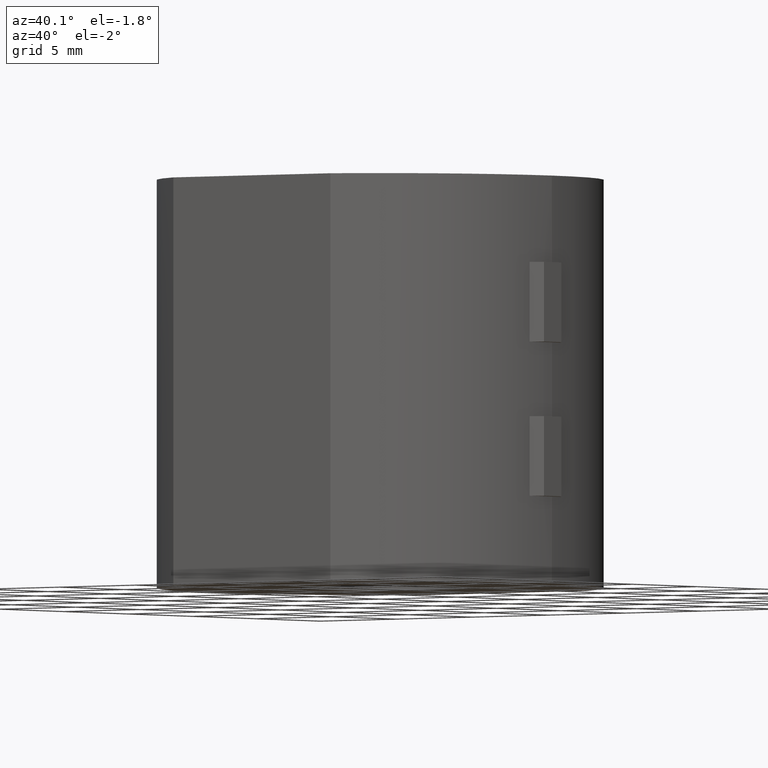
[diagram: clean part render]
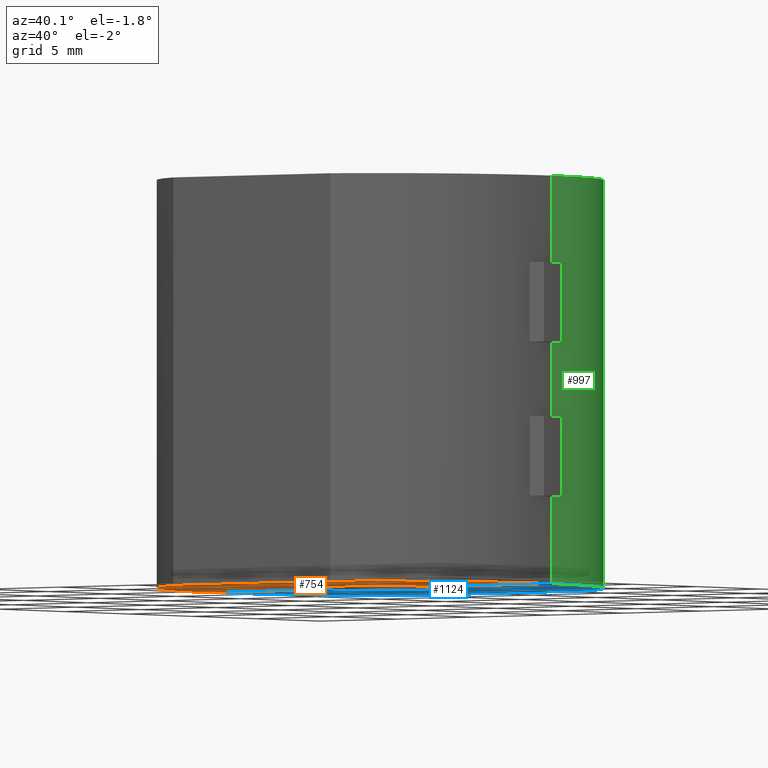
[diagram: same view with three faces highlighted in distinct colors, each labeled with its STEP entity id]
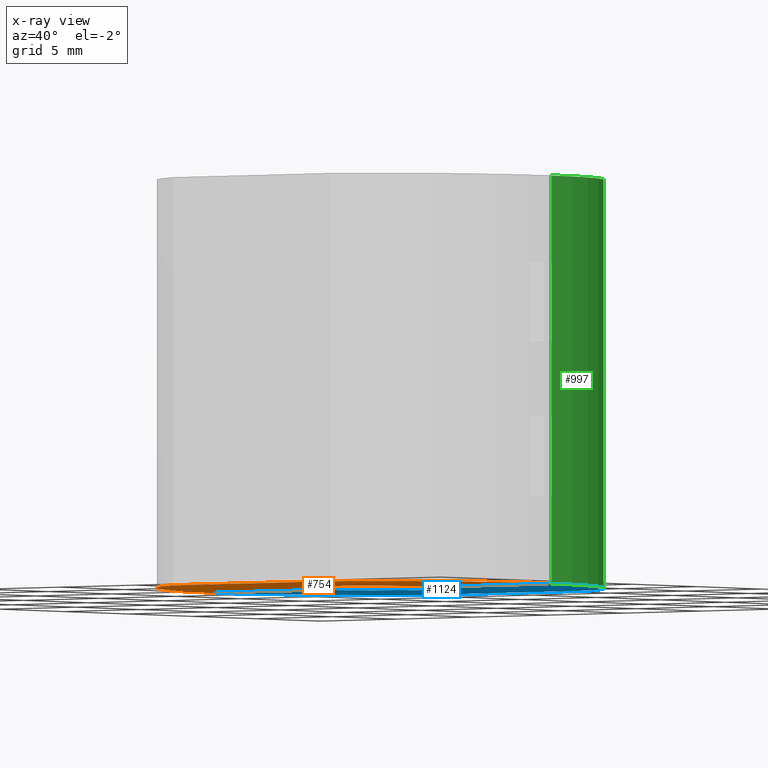
[diagram: x-ray of the same camera — body ghosted, the three highlighted faces saturated]
A machine part, auxiliary view with three faces highlighted in distinct colors.
The next image is the same camera in x-ray (body ghosted, the three faces saturated) — at least one of them is partly hidden behind the body in this view.
Their STEP definitions:

[orange] entity #754 — the highlighted planar face has unit normal (0, 0, 1).
#6 = DIRECTION ( 'NONE',  ( 1.000000000000000000, 0.0000000000000000000, -0.0000000000000000000 ) ) ;
#42 = VECTOR ( 'NONE', #1060, 1000.000000000000000 ) ;
#103 = VERTEX_POINT ( 'NONE', #1863 ) ;
#178 = CARTESIAN_POINT ( 'NONE',  ( 0.0000000000000000000, 0.0000000000000000000, -10.25000000000000000 ) ) ;
#203 = VECTOR ( 'NONE', #771, 1000.000000000000000 ) ;
#289 = DIRECTION ( 'NONE',  ( -1.000000000000000000, -0.0000000000000000000, -0.0000000000000000000 ) ) ;
#439 = VERTEX_POINT ( 'NONE', #1142 ) ;
#469 = DIRECTION ( 'NONE',  ( 0.0000000000000000000, 0.0000000000000000000, 1.000000000000000000 ) ) ;
#507 = PLANE ( 'NONE',  #2711 ) ;
#668 = ORIENTED_EDGE ( 'NONE', *, *, #2543, .T. ) ;
#683 = DIRECTION ( 'NONE',  ( 0.0000000000000000000, 0.0000000000000000000, 1.000000000000000000 ) ) ;
#695 = CARTESIAN_POINT ( 'NONE',  ( 0.0000000000000000000, 0.0000000000000000000, -10.25000000000000000 ) ) ;
#746 = VECTOR ( 'NONE', #289, 1000.000000000000000 ) ;
#754 = ADVANCED_FACE ( 'NONE', ( #1713 ), #507, .F. ) ;
#771 = DIRECTION ( 'NONE',  ( 1.000000000000000000, 0.0000000000000000000, 0.0000000000000000000 ) ) ;
#791 = CARTESIAN_POINT ( 'NONE',  ( 11.25000000000000400, -0.01000000000000000000, -10.25000000000000000 ) ) ;
#911 = CARTESIAN_POINT ( 'NONE',  ( -5.153883109957860100, -10.00000444444357100, -10.25000000000000000 ) ) ;
#945 = CARTESIAN_POINT ( 'NONE',  ( 0.0000000000000000000, 0.0000000000000000000, -10.25000000000000000 ) ) ;
#949 = EDGE_CURVE ( 'NONE', #103, #2123, #2583, .T. ) ;
#965 = CIRCLE ( 'NONE', #1501, 4.000000000000000000 ) ;
#1060 = DIRECTION ( 'NONE',  ( 1.000000000000000000, 0.0000000000000000000, 0.0000000000000000000 ) ) ;
#1138 = DIRECTION ( 'NONE',  ( 1.000000000000000000, 0.0000000000000000000, 0.0000000000000000000 ) ) ;
#1142 = CARTESIAN_POINT ( 'NONE',  ( -3.999987499980468500, -0.01000000000000000000, -10.25000000000000000 ) ) ;
#1269 = VERTEX_POINT ( 'NONE', #791 ) ;
#1386 = DIRECTION ( 'NONE',  ( 0.0000000000000000000, 0.0000000000000000000, 1.000000000000000000 ) ) ;
#1501 = AXIS2_PLACEMENT_3D ( 'NONE', #178, #1386, #1138 ) ;
#1622 = CIRCLE ( 'NONE', #1694, 11.25000000000000200 ) ;
#1649 = DIRECTION ( 'NONE',  ( 1.000000000000000000, 0.0000000000000000000, 0.0000000000000000000 ) ) ;
#1694 = AXIS2_PLACEMENT_3D ( 'NONE', #945, #683, #1649 ) ;
#1713 = FACE_OUTER_BOUND ( 'NONE', #2938, .T. ) ;
#1742 = ORIENTED_EDGE ( 'NONE', *, *, #1850, .T. ) ;
#1814 = CIRCLE ( 'NONE', #2529, 11.25000000000000200 ) ;
#1833 = ORIENTED_EDGE ( 'NONE', *, *, #2331, .F. ) ;
#1850 = EDGE_CURVE ( 'NONE', #439, #2860, #965, .T. ) ;
#1863 = CARTESIAN_POINT ( 'NONE',  ( 5.153879925909331300, -10.00000108546538300, -10.25000000000000000 ) ) ;
#1967 = LINE ( 'NONE', #2507, #42 ) ;
#1978 = CARTESIAN_POINT ( 'NONE',  ( -11.25000000000000200, -0.01000000000000000000, -10.25000000000000000 ) ) ;
#2123 = VERTEX_POINT ( 'NONE', #911 ) ;
#2202 = CARTESIAN_POINT ( 'NONE',  ( 0.0000000000000000000, -10.00000444444357100, -10.25000000000000000 ) ) ;
#2233 = EDGE_CURVE ( 'NONE', #103, #1269, #1814, .T. ) ;
#2270 = ORIENTED_EDGE ( 'NONE', *, *, #2804, .T. ) ;
#2311 = LINE ( 'NONE', #1978, #203 ) ;
#2331 = EDGE_CURVE ( 'NONE', #2411, #2123, #1622, .T. ) ;
#2411 = VERTEX_POINT ( 'NONE', #2856 ) ;
#2507 = CARTESIAN_POINT ( 'NONE',  ( -11.25000000000000200, -0.01000000000000000000, -10.25000000000000000 ) ) ;
#2515 = CARTESIAN_POINT ( 'NONE',  ( 3.999987499980468500, -0.01000000000000000000, -10.25000000000000000 ) ) ;
#2529 = AXIS2_PLACEMENT_3D ( 'NONE', #695, #469, #3102 ) ;
#2543 = EDGE_CURVE ( 'NONE', #2411, #439, #2311, .T. ) ;
#2583 = LINE ( 'NONE', #2202, #746 ) ;
#2673 = ORIENTED_EDGE ( 'NONE', *, *, #2233, .F. ) ;
#2711 = AXIS2_PLACEMENT_3D ( 'NONE', #2886, #3125, #6 ) ;
#2804 = EDGE_CURVE ( 'NONE', #2860, #1269, #1967, .T. ) ;
#2856 = CARTESIAN_POINT ( 'NONE',  ( -11.25000000000000200, -0.01000000000000000000, -10.25000000000000000 ) ) ;
#2860 = VERTEX_POINT ( 'NONE', #2515 ) ;
#2883 = ORIENTED_EDGE ( 'NONE', *, *, #949, .T. ) ;
#2886 = CARTESIAN_POINT ( 'NONE',  ( 0.0000000000000000000, 0.0000000000000000000, -10.25000000000000000 ) ) ;
#2938 = EDGE_LOOP ( 'NONE', ( #2673, #2883, #1833, #668, #1742, #2270 ) ) ;
#3102 = DIRECTION ( 'NONE',  ( 1.000000000000000000, 0.0000000000000000000, 0.0000000000000000000 ) ) ;
#3125 = DIRECTION ( 'NONE',  ( 0.0000000000000000000, 0.0000000000000000000, 1.000000000000000000 ) ) ;

[blue] entity #1124 — the highlighted planar face has unit normal (0, 0, 1).
#11 = LINE ( 'NONE', #2672, #288 ) ;
#83 = AXIS2_PLACEMENT_3D ( 'NONE', #3044, #1579, #2530 ) ;
#234 = AXIS2_PLACEMENT_3D ( 'NONE', #333, #1058, #357 ) ;
#270 = CIRCLE ( 'NONE', #83, 11.25000000000000200 ) ;
#288 = VECTOR ( 'NONE', #2915, 1000.000000000000000 ) ;
#293 = VERTEX_POINT ( 'NONE', #2510 ) ;
#329 = VECTOR ( 'NONE', #533, 1000.000000000000000 ) ;
#333 = CARTESIAN_POINT ( 'NONE',  ( 0.0000000000000000000, 0.0000000000000000000, -10.25000000000000000 ) ) ;
#357 = DIRECTION ( 'NONE',  ( 1.000000000000000000, 0.0000000000000000000, 0.0000000000000000000 ) ) ;
#370 = AXIS2_PLACEMENT_3D ( 'NONE', #875, #2102, #2568 ) ;
#410 = CARTESIAN_POINT ( 'NONE',  ( -3.999987499980468500, 0.009999999999998133600, -10.25000000000000000 ) ) ;
#533 = DIRECTION ( 'NONE',  ( -1.000000000000000000, -1.224244953098215300E-016, 0.0000000000000000000 ) ) ;
#714 = CARTESIAN_POINT ( 'NONE',  ( -11.25000000000000200, 0.009999999999997245500, -10.25000000000000000 ) ) ;
#733 = ORIENTED_EDGE ( 'NONE', *, *, #1013, .T. ) ;
#736 = ORIENTED_EDGE ( 'NONE', *, *, #1853, .T. ) ;
#741 = EDGE_CURVE ( 'NONE', #1893, #839, #11, .T. ) ;
#839 = VERTEX_POINT ( 'NONE', #1686 ) ;
#875 = CARTESIAN_POINT ( 'NONE',  ( 0.0000000000000000000, 0.0000000000000000000, -10.25000000000000000 ) ) ;
#917 = ORIENTED_EDGE ( 'NONE', *, *, #1050, .F. ) ;
#927 = CARTESIAN_POINT ( 'NONE',  ( 0.0000000000000000000, 0.0000000000000000000, -10.25000000000000000 ) ) ;
#1013 = EDGE_CURVE ( 'NONE', #2884, #293, #1587, .T. ) ;
#1050 = EDGE_CURVE ( 'NONE', #2884, #3114, #1402, .T. ) ;
#1058 = DIRECTION ( 'NONE',  ( 0.0000000000000000000, 0.0000000000000000000, 1.000000000000000000 ) ) ;
#1124 = ADVANCED_FACE ( 'NONE', ( #3080 ), #1347, .F. ) ;
#1136 = LINE ( 'NONE', #2919, #329 ) ;
#1161 = DIRECTION ( 'NONE',  ( 0.0000000000000000000, 0.0000000000000000000, 1.000000000000000000 ) ) ;
#1260 = EDGE_CURVE ( 'NONE', #2970, #3114, #1136, .T. ) ;
#1347 = PLANE ( 'NONE',  #370 ) ;
#1402 = CIRCLE ( 'NONE', #234, 11.25000000000000200 ) ;
#1422 = EDGE_LOOP ( 'NONE', ( #917, #733, #1864, #2364, #736, #1563 ) ) ;
#1563 = ORIENTED_EDGE ( 'NONE', *, *, #1260, .T. ) ;
#1577 = CARTESIAN_POINT ( 'NONE',  ( -5.153883109957860100, 10.00000444444357100, -10.25000000000000000 ) ) ;
#1579 = DIRECTION ( 'NONE',  ( 0.0000000000000000000, 0.0000000000000000000, 1.000000000000000000 ) ) ;
#1587 = LINE ( 'NONE', #1758, #2628 ) ;
#1641 = CARTESIAN_POINT ( 'NONE',  ( 11.25000000000000400, 0.01000000000000000000, -10.25000000000000000 ) ) ;
#1686 = CARTESIAN_POINT ( 'NONE',  ( 3.999987499980468500, 0.009999999999999113800, -10.25000000000000000 ) ) ;
#1706 = EDGE_CURVE ( 'NONE', #1893, #293, #270, .T. ) ;
#1758 = CARTESIAN_POINT ( 'NONE',  ( -5.153883109957860100, 10.00000444444357100, -10.25000000000000000 ) ) ;
#1853 = EDGE_CURVE ( 'NONE', #839, #2970, #2298, .T. ) ;
#1864 = ORIENTED_EDGE ( 'NONE', *, *, #1706, .F. ) ;
#1893 = VERTEX_POINT ( 'NONE', #1641 ) ;
#2102 = DIRECTION ( 'NONE',  ( 0.0000000000000000000, 0.0000000000000000000, 1.000000000000000000 ) ) ;
#2225 = AXIS2_PLACEMENT_3D ( 'NONE', #927, #1161, #2855 ) ;
#2273 = DIRECTION ( 'NONE',  ( 1.000000000000000000, 0.0000000000000000000, 0.0000000000000000000 ) ) ;
#2298 = CIRCLE ( 'NONE', #2225, 4.000000000000000000 ) ;
#2364 = ORIENTED_EDGE ( 'NONE', *, *, #741, .T. ) ;
#2510 = CARTESIAN_POINT ( 'NONE',  ( 5.153883109957860100, 10.00000444444357100, -10.25000000000000000 ) ) ;
#2530 = DIRECTION ( 'NONE',  ( 1.000000000000000000, 0.0000000000000000000, 0.0000000000000000000 ) ) ;
#2568 = DIRECTION ( 'NONE',  ( 1.000000000000000000, 0.0000000000000000000, -0.0000000000000000000 ) ) ;
#2628 = VECTOR ( 'NONE', #2273, 1000.000000000000000 ) ;
#2672 = CARTESIAN_POINT ( 'NONE',  ( 11.25000000000000400, 0.01000000000000000000, -10.25000000000000000 ) ) ;
#2855 = DIRECTION ( 'NONE',  ( 1.000000000000000000, 0.0000000000000000000, 0.0000000000000000000 ) ) ;
#2884 = VERTEX_POINT ( 'NONE', #1577 ) ;
#2915 = DIRECTION ( 'NONE',  ( -1.000000000000000000, -1.224244953098215300E-016, 0.0000000000000000000 ) ) ;
#2919 = CARTESIAN_POINT ( 'NONE',  ( 11.25000000000000400, 0.01000000000000000000, -10.25000000000000000 ) ) ;
#2970 = VERTEX_POINT ( 'NONE', #410 ) ;
#3044 = CARTESIAN_POINT ( 'NONE',  ( 0.0000000000000000000, 0.0000000000000000000, -10.25000000000000000 ) ) ;
#3080 = FACE_OUTER_BOUND ( 'NONE', #1422, .T. ) ;
#3114 = VERTEX_POINT ( 'NONE', #714 ) ;

[green] entity #997 — the highlighted cylindrical surface (partial cylindrical patch) has radius 11.25 mm, axis along (0, 0, 1).
#83 = AXIS2_PLACEMENT_3D ( 'NONE', #3044, #1579, #2530 ) ;
#89 = ORIENTED_EDGE ( 'NONE', *, *, #1972, .F. ) ;
#106 = DIRECTION ( 'NONE',  ( 0.0000000000000000000, 0.0000000000000000000, 1.000000000000000000 ) ) ;
#121 = ORIENTED_EDGE ( 'NONE', *, *, #1706, .T. ) ;
#270 = CIRCLE ( 'NONE', #83, 11.25000000000000200 ) ;
#293 = VERTEX_POINT ( 'NONE', #2510 ) ;
#581 = VECTOR ( 'NONE', #942, 1000.000000000000000 ) ;
#599 = DIRECTION ( 'NONE',  ( 1.000000000000000000, 0.0000000000000000000, 0.0000000000000000000 ) ) ;
#725 = AXIS2_PLACEMENT_3D ( 'NONE', #2757, #106, #599 ) ;
#828 = CARTESIAN_POINT ( 'NONE',  ( 0.0000000000000000000, 0.0000000000000000000, 10.25000000000000000 ) ) ;
#849 = DIRECTION ( 'NONE',  ( 0.0000000000000000000, 0.0000000000000000000, 1.000000000000000000 ) ) ;
#942 = DIRECTION ( 'NONE',  ( -0.0000000000000000000, -0.0000000000000000000, 1.000000000000000000 ) ) ;
#950 = LINE ( 'NONE', #2115, #581 ) ;
#997 = ADVANCED_FACE ( 'NONE', ( #3026 ), #1818, .T. ) ;
#1067 = DIRECTION ( 'NONE',  ( 1.000000000000000000, 0.0000000000000000000, 0.0000000000000000000 ) ) ;
#1252 = CIRCLE ( 'NONE', #1446, 11.25000000000000200 ) ;
#1303 = VERTEX_POINT ( 'NONE', #2719 ) ;
#1446 = AXIS2_PLACEMENT_3D ( 'NONE', #828, #849, #1067 ) ;
#1579 = DIRECTION ( 'NONE',  ( 0.0000000000000000000, 0.0000000000000000000, 1.000000000000000000 ) ) ;
#1641 = CARTESIAN_POINT ( 'NONE',  ( 11.25000000000000400, 0.01000000000000000000, -10.25000000000000000 ) ) ;
#1676 = B_SPLINE_CURVE_WITH_KNOTS ( 'NONE', 3,
 ( #2969, #2214, #2930, #2467 ),
 .UNSPECIFIED., .F., .F.,
 ( 4, 4 ),
 ( 0.0000000000000000000, 1.000000000000000000 ),
 .UNSPECIFIED. ) ;
#1706 = EDGE_CURVE ( 'NONE', #1893, #293, #270, .T. ) ;
#1818 = CYLINDRICAL_SURFACE ( 'NONE', #725, 11.25000000000000200 ) ;
#1830 = EDGE_CURVE ( 'NONE', #1893, #1303, #950, .T. ) ;
#1893 = VERTEX_POINT ( 'NONE', #1641 ) ;
#1933 = EDGE_LOOP ( 'NONE', ( #2832, #89, #2631, #121 ) ) ;
#1972 = EDGE_CURVE ( 'NONE', #1303, #3127, #1252, .T. ) ;
#2115 = CARTESIAN_POINT ( 'NONE',  ( 11.25000000000000400, 0.01000000000000000000, -10.25000000000000000 ) ) ;
#2214 = CARTESIAN_POINT ( 'NONE',  ( 5.153883109957860100, 9.999999444444540600, -3.416666666666668700 ) ) ;
#2423 = CARTESIAN_POINT ( 'NONE',  ( 5.153883109957860100, 10.00000444444357100, 10.25000000000000000 ) ) ;
#2467 = CARTESIAN_POINT ( 'NONE',  ( 5.153883109957860100, 10.00000444444357100, 10.25000000000000000 ) ) ;
#2510 = CARTESIAN_POINT ( 'NONE',  ( 5.153883109957860100, 10.00000444444357100, -10.25000000000000000 ) ) ;
#2530 = DIRECTION ( 'NONE',  ( 1.000000000000000000, 0.0000000000000000000, 0.0000000000000000000 ) ) ;
#2631 = ORIENTED_EDGE ( 'NONE', *, *, #1830, .F. ) ;
#2681 = EDGE_CURVE ( 'NONE', #293, #3127, #1676, .T. ) ;
#2719 = CARTESIAN_POINT ( 'NONE',  ( 11.25000000000000400, 0.01000000000000000000, 10.25000000000000000 ) ) ;
#2757 = CARTESIAN_POINT ( 'NONE',  ( 0.0000000000000000000, 0.0000000000000000000, -10.25000000000000000 ) ) ;
#2832 = ORIENTED_EDGE ( 'NONE', *, *, #2681, .T. ) ;
#2930 = CARTESIAN_POINT ( 'NONE',  ( 5.153883109957860100, 9.999999444444540600, 3.416666666666665200 ) ) ;
#2969 = CARTESIAN_POINT ( 'NONE',  ( 5.153883109957860100, 10.00000444444357100, -10.25000000000000000 ) ) ;
#3026 = FACE_OUTER_BOUND ( 'NONE', #1933, .T. ) ;
#3044 = CARTESIAN_POINT ( 'NONE',  ( 0.0000000000000000000, 0.0000000000000000000, -10.25000000000000000 ) ) ;
#3127 = VERTEX_POINT ( 'NONE', #2423 ) ;